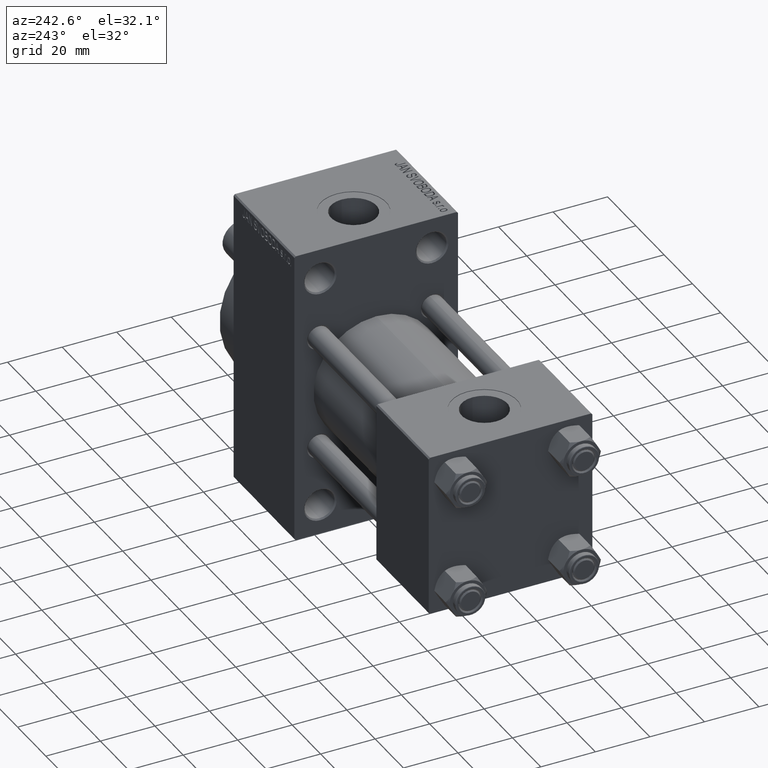
[diagram: clean part render]
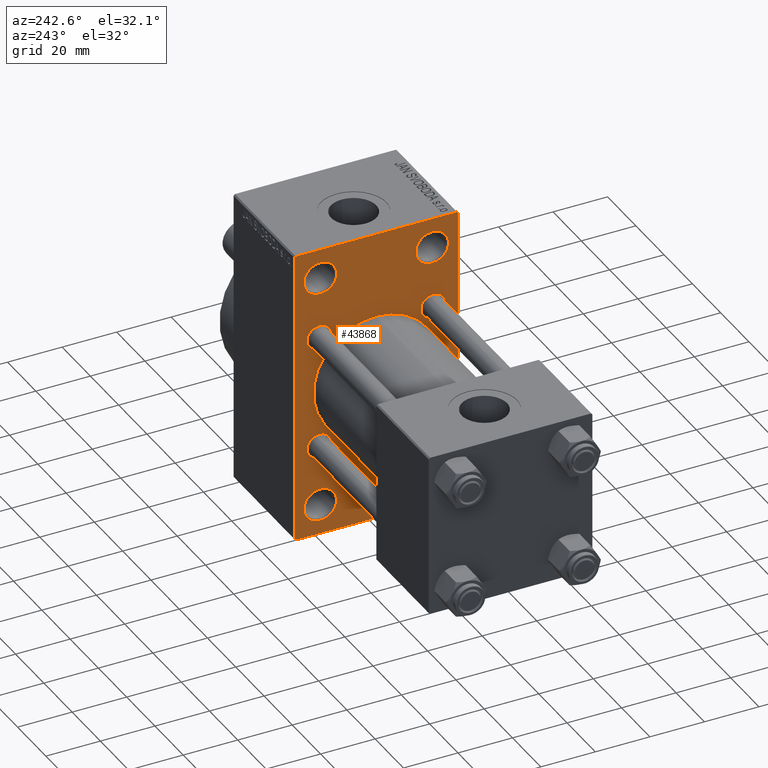
[diagram: same view with one face highlighted and labeled with its STEP entity id]
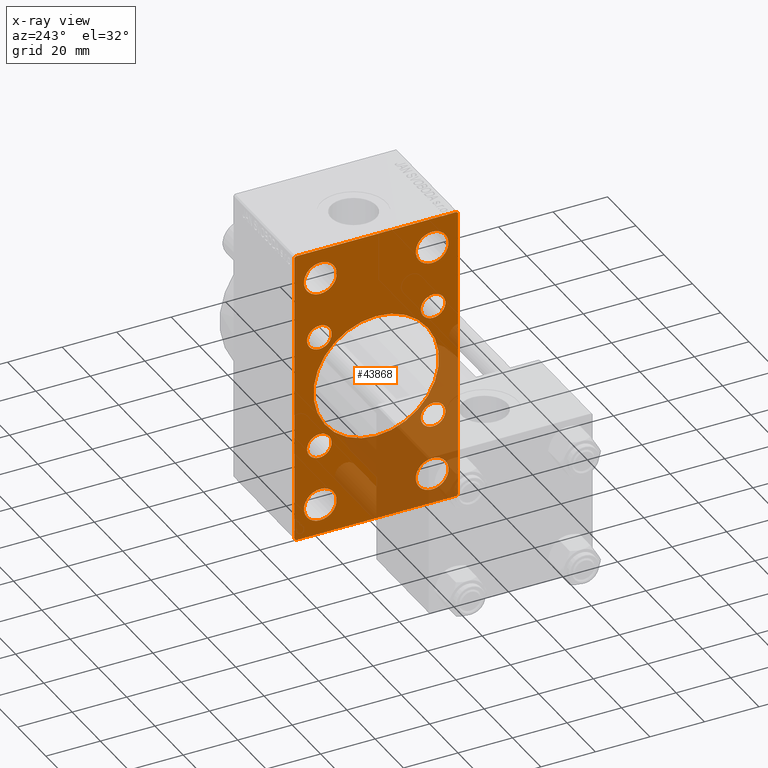
[diagram: x-ray of the same camera — body ghosted, the highlighted face saturated]
A machine part, auxiliary view. The second image highlights one B-rep face of the part: STEP entity #43868.
The next image is the same camera in x-ray: the body ghosted, the highlighted face saturated — about 33% of this face is hidden behind the body in this view.
In plain terms, the highlighted planar face has unit normal (-1, 0, 0).
Its self-contained STEP definition (entity closure, byte-faithful):
#103 = CIRCLE ( 'NONE', #17872, 4.500000000000007105 ) ;
#120 = CARTESIAN_POINT ( 'NONE',  ( 95.00000000000000000, -2.602085213965210642E-15, 23.00000000000000000 ) ) ;
#139 = AXIS2_PLACEMENT_3D ( 'NONE', #6416, #21160, #2768 ) ;
#184 = CARTESIAN_POINT ( 'NONE',  ( 95.00000000000000000, -20.50000000000000000, 37.50000000000009948 ) ) ;
#504 = CIRCLE ( 'NONE', #2815, 5.999999999999894307 ) ;
#742 = EDGE_LOOP ( 'NONE', ( #38687, #14866 ) ) ;
#1057 = EDGE_LOOP ( 'NONE', ( #47079, #43372, #40968, #3454, #30568, #5935, #10012, #42670 ) ) ;
#1540 = AXIS2_PLACEMENT_3D ( 'NONE', #15636, #37929, #12255 ) ;
#1602 = CIRCLE ( 'NONE', #24030, 5.999999999999894307 ) ;
#1646 = CARTESIAN_POINT ( 'NONE',  ( 95.00000000000000000, -29.49999999999997513, 54.50000000000000000 ) ) ;
#1828 = LINE ( 'NONE', #43219, #30032 ) ;
#2073 = DIRECTION ( 'NONE',  ( 1.000000000000000000, -0.000000000000000000, 0.000000000000000000 ) ) ;
#2411 = LINE ( 'NONE', #6526, #32993 ) ;
#2542 = EDGE_LOOP ( 'NONE', ( #32224, #19873 ) ) ;
#2768 = DIRECTION ( 'NONE',  ( 0.000000000000000000, 0.000000000000000000, 1.000000000000000000 ) ) ;
#2815 = AXIS2_PLACEMENT_3D ( 'NONE', #34805, #17554, #47142 ) ;
#2838 = DIRECTION ( 'NONE',  ( 0.000000000000000000, 0.7071067811865279218, -0.7071067811865671127 ) ) ;
#3185 = DIRECTION ( 'NONE',  ( 0.000000000000000000, 0.000000000000000000, -1.000000000000000000 ) ) ;
#3319 = VECTOR ( 'NONE', #2838, 1000.000000000000000 ) ;
#3454 = ORIENTED_EDGE ( 'NONE', *, *, #16496, .T. ) ;
#3600 = VERTEX_POINT ( 'NONE', #33963 ) ;
#3620 = LINE ( 'NONE', #21522, #36493 ) ;
#3917 = CARTESIAN_POINT ( 'NONE',  ( 95.00000000000000000, 29.99999999999999645, -53.99999999999999289 ) ) ;
#4335 = DIRECTION ( 'NONE',  ( -1.000000000000000000, 0.000000000000000000, -0.000000000000000000 ) ) ;
#4456 = AXIS2_PLACEMENT_3D ( 'NONE', #16023, #34679, #8551 ) ;
#4520 = VECTOR ( 'NONE', #31721, 1000.000000000000000 ) ;
#4663 = CIRCLE ( 'NONE', #20086, 5.999999999999894307 ) ;
#4765 = EDGE_LOOP ( 'NONE', ( #14617, #10496 ) ) ;
#4766 = EDGE_CURVE ( 'NONE', #33089, #46658, #21501, .T. ) ;
#5097 = VERTEX_POINT ( 'NONE', #21099 ) ;
#5305 = CARTESIAN_POINT ( 'NONE',  ( 95.00000000000000000, -20.84999999999999076, -20.85000000000000497 ) ) ;
#5537 = VECTOR ( 'NONE', #16749, 1000.000000000000000 ) ;
#5544 = VERTEX_POINT ( 'NONE', #7005 ) ;
#5603 = VERTEX_POINT ( 'NONE', #1646 ) ;
#5935 = ORIENTED_EDGE ( 'NONE', *, *, #46875, .T. ) ;
#6113 = CIRCLE ( 'NONE', #22339, 4.500000000000007105 ) ;
#6416 = CARTESIAN_POINT ( 'NONE',  ( 95.00000000000000000, -20.84999999999999076, -20.85000000000000497 ) ) ;
#6526 = CARTESIAN_POINT ( 'NONE',  ( 95.00000000000000000, 29.99999999999999645, 54.49999999999999289 ) ) ;
#7005 = CARTESIAN_POINT ( 'NONE',  ( 95.00000000000000000, -20.84999999999999076, 16.34999999999999787 ) ) ;
#7023 = CIRCLE ( 'NONE', #13955, 23.00000000000000000 ) ;
#7038 = EDGE_CURVE ( 'NONE', #45391, #22567, #46378, .T. ) ;
#7099 = EDGE_CURVE ( 'NONE', #3600, #33226, #28600, .T. ) ;
#7242 = ORIENTED_EDGE ( 'NONE', *, *, #12893, .T. ) ;
#7812 = ORIENTED_EDGE ( 'NONE', *, *, #44986, .T. ) ;
#8228 = CARTESIAN_POINT ( 'NONE',  ( 95.00000000000000000, -20.84999999999999076, 20.85000000000000497 ) ) ;
#8286 = EDGE_CURVE ( 'NONE', #31011, #41656, #39776, .T. ) ;
#8551 = DIRECTION ( 'NONE',  ( 0.000000000000000000, 0.000000000000000000, 1.000000000000000000 ) ) ;
#9158 = DIRECTION ( 'NONE',  ( 0.000000000000000000, 0.000000000000000000, 1.000000000000000000 ) ) ;
#9332 = DIRECTION ( 'NONE',  ( -0.000000000000000000, 0.000000000000000000, 1.000000000000000000 ) ) ;
#9390 = CARTESIAN_POINT ( 'NONE',  ( 95.00000000000000000, 20.84999999999999787, -25.35000000000000853 ) ) ;
#10012 = ORIENTED_EDGE ( 'NONE', *, *, #43140, .T. ) ;
#10422 = EDGE_LOOP ( 'NONE', ( #37368, #7242 ) ) ;
#10496 = ORIENTED_EDGE ( 'NONE', *, *, #18698, .T. ) ;
#11124 = DIRECTION ( 'NONE',  ( 1.000000000000000000, -0.000000000000000000, 0.000000000000000000 ) ) ;
#11148 = DIRECTION ( 'NONE',  ( 0.000000000000000000, 0.000000000000000000, 1.000000000000000000 ) ) ;
#11362 = CARTESIAN_POINT ( 'NONE',  ( 95.00000000000000000, 29.50000000000002132, 54.49999999999999289 ) ) ;
#11600 = FACE_BOUND ( 'NONE', #31286, .T. ) ;
#12255 = DIRECTION ( 'NONE',  ( 0.000000000000000000, 0.000000000000000000, -1.000000000000000000 ) ) ;
#12434 = CARTESIAN_POINT ( 'NONE',  ( 95.00000000000000000, 20.84999999999999787, 25.35000000000000853 ) ) ;
#12538 = DIRECTION ( 'NONE',  ( 1.000000000000000000, -0.000000000000000000, 0.000000000000000000 ) ) ;
#12727 = FACE_BOUND ( 'NONE', #14024, .T. ) ;
#12827 = CARTESIAN_POINT ( 'NONE',  ( 95.00000000000000000, 20.84999999999999787, 20.85000000000000142 ) ) ;
#12893 = EDGE_CURVE ( 'NONE', #23001, #5097, #504, .T. ) ;
#12955 = FACE_OUTER_BOUND ( 'NONE', #1057, .T. ) ;
#13161 = VERTEX_POINT ( 'NONE', #31596 ) ;
#13526 = EDGE_CURVE ( 'NONE', #47795, #5603, #2411, .T. ) ;
#13535 = EDGE_CURVE ( 'NONE', #45205, #35740, #15976, .T. ) ;
#13732 = LINE ( 'NONE', #43768, #3319 ) ;
#13955 = AXIS2_PLACEMENT_3D ( 'NONE', #21098, #17924, #3185 ) ;
#14021 = DIRECTION ( 'NONE',  ( 0.000000000000000000, -1.000000000000000000, -1.156482317317871478E-16 ) ) ;
#14024 = EDGE_LOOP ( 'NONE', ( #33918, #37259 ) ) ;
#14454 = EDGE_CURVE ( 'NONE', #36339, #30585, #27647, .T. ) ;
#14617 = ORIENTED_EDGE ( 'NONE', *, *, #21770, .T. ) ;
#14866 = ORIENTED_EDGE ( 'NONE', *, *, #16121, .T. ) ;
#15574 = CIRCLE ( 'NONE', #34950, 4.500000000000007105 ) ;
#15636 = CARTESIAN_POINT ( 'NONE',  ( 95.00000000000000000, -2.602085213965210642E-15, 0.000000000000000000 ) ) ;
#15895 = CARTESIAN_POINT ( 'NONE',  ( 95.00000000000000000, 20.50000000000000000, -43.50000000000000000 ) ) ;
#15903 = ORIENTED_EDGE ( 'NONE', *, *, #7099, .T. ) ;
#15976 = CIRCLE ( 'NONE', #43820, 4.500000000000007105 ) ;
#16023 = CARTESIAN_POINT ( 'NONE',  ( 95.00000000000000000, -20.50000000000000000, 43.50000000000000000 ) ) ;
#16121 = EDGE_CURVE ( 'NONE', #39949, #26366, #38485, .T. ) ;
#16154 = AXIS2_PLACEMENT_3D ( 'NONE', #31093, #42465, #26975 ) ;
#16489 = EDGE_CURVE ( 'NONE', #20918, #13161, #22266, .T. ) ;
#16496 = EDGE_CURVE ( 'NONE', #33089, #5603, #1828, .T. ) ;
#16749 = DIRECTION ( 'NONE',  ( 0.000000000000000000, 0.000000000000000000, -1.000000000000000000 ) ) ;
#16801 = EDGE_CURVE ( 'NONE', #19007, #46658, #46966, .T. ) ;
#17554 = DIRECTION ( 'NONE',  ( 1.000000000000000000, -0.000000000000000000, 0.000000000000000000 ) ) ;
#17872 = AXIS2_PLACEMENT_3D ( 'NONE', #31606, #37733, #41150 ) ;
#17924 = DIRECTION ( 'NONE',  ( 1.000000000000000000, 0.000000000000000000, 0.000000000000000000 ) ) ;
#18698 = EDGE_CURVE ( 'NONE', #5544, #36433, #6113, .T. ) ;
#19007 = VERTEX_POINT ( 'NONE', #28294 ) ;
#19573 = DIRECTION ( 'NONE',  ( 1.000000000000000000, -0.000000000000000000, 0.000000000000000000 ) ) ;
#19873 = ORIENTED_EDGE ( 'NONE', *, *, #7038, .T. ) ;
#19968 = AXIS2_PLACEMENT_3D ( 'NONE', #38917, #27066, #41844 ) ;
#20086 = AXIS2_PLACEMENT_3D ( 'NONE', #26386, #19573, #41166 ) ;
#20626 = LINE ( 'NONE', #21339, #5537 ) ;
#20712 = CARTESIAN_POINT ( 'NONE',  ( 95.00000000000000000, 20.50000000000000000, 37.50000000000009948 ) ) ;
#20864 = EDGE_CURVE ( 'NONE', #13161, #20918, #24621, .T. ) ;
#20918 = VERTEX_POINT ( 'NONE', #20712 ) ;
#21098 = CARTESIAN_POINT ( 'NONE',  ( 95.00000000000000000, -2.602085213965210642E-15, 0.000000000000000000 ) ) ;
#21099 = CARTESIAN_POINT ( 'NONE',  ( 95.00000000000000000, -20.50000000000000000, -37.50000000000009948 ) ) ;
#21160 = DIRECTION ( 'NONE',  ( 1.000000000000000000, -0.000000000000000000, 0.000000000000000000 ) ) ;
#21339 = CARTESIAN_POINT ( 'NONE',  ( 95.00000000000000000, 29.99999999999999645, 54.49999999999999289 ) ) ;
#21501 = LINE ( 'NONE', #24906, #24649 ) ;
#21522 = CARTESIAN_POINT ( 'NONE',  ( 95.00000000000000000, 29.99999999999999645, -54.49999999999999289 ) ) ;
#21594 = CIRCLE ( 'NONE', #16154, 5.999999999999894307 ) ;
#21770 = EDGE_CURVE ( 'NONE', #36433, #5544, #40886, .T. ) ;
#21771 = DIRECTION ( 'NONE',  ( 0.000000000000000000, 0.000000000000000000, 1.000000000000000000 ) ) ;
#22037 = VERTEX_POINT ( 'NONE', #38803 ) ;
#22266 = CIRCLE ( 'NONE', #33899, 5.999999999999894307 ) ;
#22339 = AXIS2_PLACEMENT_3D ( 'NONE', #8228, #37755, #43418 ) ;
#22567 = VERTEX_POINT ( 'NONE', #120 ) ;
#22954 = FACE_BOUND ( 'NONE', #2542, .T. ) ;
#23001 = VERTEX_POINT ( 'NONE', #47871 ) ;
#23407 = DIRECTION ( 'NONE',  ( 1.000000000000000000, -0.000000000000000000, 0.000000000000000000 ) ) ;
#23666 = CARTESIAN_POINT ( 'NONE',  ( 95.00000000000000000, 20.50000000000000000, -43.50000000000000000 ) ) ;
#24030 = AXIS2_PLACEMENT_3D ( 'NONE', #15895, #23407, #30689 ) ;
#24565 = DIRECTION ( 'NONE',  ( 0.000000000000000000, 0.000000000000000000, 1.000000000000000000 ) ) ;
#24621 = CIRCLE ( 'NONE', #36233, 5.999999999999894307 ) ;
#24649 = VECTOR ( 'NONE', #25869, 1000.000000000000000 ) ;
#24772 = CARTESIAN_POINT ( 'NONE',  ( 95.00000000000000000, 20.50000000000000000, -49.49999999999989342 ) ) ;
#24801 = EDGE_CURVE ( 'NONE', #5097, #23001, #4663, .T. ) ;
#24906 = CARTESIAN_POINT ( 'NONE',  ( 95.00000000000000000, -30.00000000000000000, 54.50000000000000000 ) ) ;
#24917 = DIRECTION ( 'NONE',  ( 0.000000000000000000, -1.000000000000000000, 1.156482317317871478E-16 ) ) ;
#25869 = DIRECTION ( 'NONE',  ( 0.000000000000000000, 0.000000000000000000, -1.000000000000000000 ) ) ;
#26157 = CARTESIAN_POINT ( 'NONE',  ( 95.00000000000000000, 20.50000000000000000, 43.50000000000000000 ) ) ;
#26366 = VERTEX_POINT ( 'NONE', #47240 ) ;
#26386 = CARTESIAN_POINT ( 'NONE',  ( 95.00000000000000000, -20.50000000000000000, -43.50000000000000000 ) ) ;
#26572 = ORIENTED_EDGE ( 'NONE', *, *, #43881, .T. ) ;
#26654 = AXIS2_PLACEMENT_3D ( 'NONE', #5305, #32092, #9158 ) ;
#26790 = EDGE_CURVE ( 'NONE', #26366, #39949, #1602, .T. ) ;
#26854 = CARTESIAN_POINT ( 'NONE',  ( 95.00000000000000000, -30.00000000000000000, -53.99999999999998579 ) ) ;
#26975 = DIRECTION ( 'NONE',  ( 0.000000000000000000, 0.000000000000000000, 1.000000000000000000 ) ) ;
#27066 = DIRECTION ( 'NONE',  ( 1.000000000000000000, -0.000000000000000000, 0.000000000000000000 ) ) ;
#27611 = DIRECTION ( 'NONE',  ( 0.000000000000000000, 0.000000000000000000, 1.000000000000000000 ) ) ;
#27647 = CIRCLE ( 'NONE', #4456, 5.999999999999894307 ) ;
#27739 = PLANE ( 'NONE',  #38786 ) ;
#28294 = CARTESIAN_POINT ( 'NONE',  ( 95.00000000000000000, -29.50000000000000355, -54.50000000000000000 ) ) ;
#28560 = EDGE_CURVE ( 'NONE', #32649, #22037, #36491, .T. ) ;
#28600 = CIRCLE ( 'NONE', #35540, 4.500000000000007105 ) ;
#29938 = EDGE_LOOP ( 'NONE', ( #30933, #46956 ) ) ;
#30032 = VECTOR ( 'NONE', #39344, 1000.000000000000114 ) ;
#30228 = CARTESIAN_POINT ( 'NONE',  ( 95.00000000000000000, -20.50000000000000000, 49.49999999999989342 ) ) ;
#30568 = ORIENTED_EDGE ( 'NONE', *, *, #13526, .F. ) ;
#30585 = VERTEX_POINT ( 'NONE', #184 ) ;
#30689 = DIRECTION ( 'NONE',  ( 0.000000000000000000, 0.000000000000000000, 1.000000000000000000 ) ) ;
#30933 = ORIENTED_EDGE ( 'NONE', *, *, #20864, .T. ) ;
#31011 = VERTEX_POINT ( 'NONE', #38258 ) ;
#31093 = CARTESIAN_POINT ( 'NONE',  ( 95.00000000000000000, -20.50000000000000000, 43.50000000000000000 ) ) ;
#31286 = EDGE_LOOP ( 'NONE', ( #33729, #7812 ) ) ;
#31596 = CARTESIAN_POINT ( 'NONE',  ( 95.00000000000000000, 20.50000000000000000, 49.49999999999989342 ) ) ;
#31606 = CARTESIAN_POINT ( 'NONE',  ( 95.00000000000000000, 20.84999999999999787, -20.85000000000000142 ) ) ;
#31721 = DIRECTION ( 'NONE',  ( 0.000000000000000000, -0.7071067811865352493, 0.7071067811865597852 ) ) ;
#32092 = DIRECTION ( 'NONE',  ( 1.000000000000000000, -0.000000000000000000, 0.000000000000000000 ) ) ;
#32190 = CARTESIAN_POINT ( 'NONE',  ( 95.00000000000000000, -42.00000000000051159, -41.99999999999905498 ) ) ;
#32224 = ORIENTED_EDGE ( 'NONE', *, *, #38148, .T. ) ;
#32649 = VERTEX_POINT ( 'NONE', #3917 ) ;
#32864 = CARTESIAN_POINT ( 'NONE',  ( 95.00000000000000000, 41.99999999999998579, -41.99999999999998579 ) ) ;
#32993 = VECTOR ( 'NONE', #24917, 1000.000000000000000 ) ;
#33089 = VERTEX_POINT ( 'NONE', #44784 ) ;
#33226 = VERTEX_POINT ( 'NONE', #9390 ) ;
#33400 = CIRCLE ( 'NONE', #139, 4.500000000000007105 ) ;
#33638 = FACE_BOUND ( 'NONE', #742, .T. ) ;
#33729 = ORIENTED_EDGE ( 'NONE', *, *, #8286, .T. ) ;
#33860 = DIRECTION ( 'NONE',  ( 0.000000000000000000, 0.000000000000000000, 1.000000000000000000 ) ) ;
#33899 = AXIS2_PLACEMENT_3D ( 'NONE', #35234, #42271, #24565 ) ;
#33918 = ORIENTED_EDGE ( 'NONE', *, *, #14454, .T. ) ;
#33963 = CARTESIAN_POINT ( 'NONE',  ( 95.00000000000000000, 20.84999999999999787, -16.34999999999999432 ) ) ;
#34117 = FACE_BOUND ( 'NONE', #47511, .T. ) ;
#34679 = DIRECTION ( 'NONE',  ( 1.000000000000000000, -0.000000000000000000, 0.000000000000000000 ) ) ;
#34805 = CARTESIAN_POINT ( 'NONE',  ( 95.00000000000000000, -20.50000000000000000, -43.50000000000000000 ) ) ;
#34934 = VECTOR ( 'NONE', #36736, 1000.000000000000114 ) ;
#34950 = AXIS2_PLACEMENT_3D ( 'NONE', #40191, #11124, #21771 ) ;
#35007 = FACE_BOUND ( 'NONE', #10422, .T. ) ;
#35234 = CARTESIAN_POINT ( 'NONE',  ( 95.00000000000000000, 20.50000000000000000, 43.50000000000000000 ) ) ;
#35449 = EDGE_CURVE ( 'NONE', #30585, #36339, #21594, .T. ) ;
#35540 = AXIS2_PLACEMENT_3D ( 'NONE', #39358, #2073, #46862 ) ;
#35740 = VERTEX_POINT ( 'NONE', #38291 ) ;
#36233 = AXIS2_PLACEMENT_3D ( 'NONE', #26157, #44339, #11148 ) ;
#36298 = CARTESIAN_POINT ( 'NONE',  ( 95.00000000000000000, 29.99999999999999645, 53.99999999999999289 ) ) ;
#36339 = VERTEX_POINT ( 'NONE', #30228 ) ;
#36433 = VERTEX_POINT ( 'NONE', #40878 ) ;
#36491 = LINE ( 'NONE', #32864, #34934 ) ;
#36493 = VECTOR ( 'NONE', #14021, 1000.000000000000000 ) ;
#36616 = EDGE_LOOP ( 'NONE', ( #43494, #36944 ) ) ;
#36736 = DIRECTION ( 'NONE',  ( -0.000000000000000000, -0.7071067811865474617, -0.7071067811865474617 ) ) ;
#36944 = ORIENTED_EDGE ( 'NONE', *, *, #44599, .T. ) ;
#37259 = ORIENTED_EDGE ( 'NONE', *, *, #35449, .T. ) ;
#37368 = ORIENTED_EDGE ( 'NONE', *, *, #24801, .T. ) ;
#37733 = DIRECTION ( 'NONE',  ( 1.000000000000000000, -0.000000000000000000, 0.000000000000000000 ) ) ;
#37755 = DIRECTION ( 'NONE',  ( 1.000000000000000000, -0.000000000000000000, 0.000000000000000000 ) ) ;
#37929 = DIRECTION ( 'NONE',  ( 1.000000000000000000, 0.000000000000000000, 0.000000000000000000 ) ) ;
#38148 = EDGE_CURVE ( 'NONE', #22567, #45391, #7023, .T. ) ;
#38258 = CARTESIAN_POINT ( 'NONE',  ( 95.00000000000000000, -20.84999999999999076, -16.34999999999999787 ) ) ;
#38291 = CARTESIAN_POINT ( 'NONE',  ( 95.00000000000000000, 20.84999999999999787, 16.34999999999999432 ) ) ;
#38485 = CIRCLE ( 'NONE', #47765, 5.999999999999894307 ) ;
#38632 = FACE_BOUND ( 'NONE', #4765, .T. ) ;
#38687 = ORIENTED_EDGE ( 'NONE', *, *, #26790, .T. ) ;
#38786 = AXIS2_PLACEMENT_3D ( 'NONE', #42515, #4335, #9332 ) ;
#38803 = CARTESIAN_POINT ( 'NONE',  ( 95.00000000000000000, 29.49999999999999645, -54.49999999999999289 ) ) ;
#38917 = CARTESIAN_POINT ( 'NONE',  ( 95.00000000000000000, -20.84999999999999076, 20.85000000000000497 ) ) ;
#39344 = DIRECTION ( 'NONE',  ( -0.000000000000000000, 0.7071067811865451302, 0.7071067811865500152 ) ) ;
#39358 = CARTESIAN_POINT ( 'NONE',  ( 95.00000000000000000, 20.84999999999999787, -20.85000000000000142 ) ) ;
#39776 = CIRCLE ( 'NONE', #26654, 4.500000000000007105 ) ;
#39949 = VERTEX_POINT ( 'NONE', #24772 ) ;
#40191 = CARTESIAN_POINT ( 'NONE',  ( 95.00000000000000000, 20.84999999999999787, 20.85000000000000142 ) ) ;
#40878 = CARTESIAN_POINT ( 'NONE',  ( 95.00000000000000000, -20.84999999999999076, 25.35000000000001208 ) ) ;
#40886 = CIRCLE ( 'NONE', #19968, 4.500000000000007105 ) ;
#40968 = ORIENTED_EDGE ( 'NONE', *, *, #4766, .F. ) ;
#41150 = DIRECTION ( 'NONE',  ( 0.000000000000000000, 0.000000000000000000, 1.000000000000000000 ) ) ;
#41166 = DIRECTION ( 'NONE',  ( 0.000000000000000000, 0.000000000000000000, 1.000000000000000000 ) ) ;
#41390 = FACE_BOUND ( 'NONE', #36616, .T. ) ;
#41656 = VERTEX_POINT ( 'NONE', #43688 ) ;
#41844 = DIRECTION ( 'NONE',  ( 0.000000000000000000, 0.000000000000000000, 1.000000000000000000 ) ) ;
#42271 = DIRECTION ( 'NONE',  ( 1.000000000000000000, -0.000000000000000000, 0.000000000000000000 ) ) ;
#42465 = DIRECTION ( 'NONE',  ( 1.000000000000000000, -0.000000000000000000, 0.000000000000000000 ) ) ;
#42515 = CARTESIAN_POINT ( 'NONE',  ( 95.00000000000000000, 0.000000000000000000, 0.000000000000000000 ) ) ;
#42670 = ORIENTED_EDGE ( 'NONE', *, *, #28560, .T. ) ;
#43092 = DIRECTION ( 'NONE',  ( 1.000000000000000000, -0.000000000000000000, 0.000000000000000000 ) ) ;
#43140 = EDGE_CURVE ( 'NONE', #43707, #32649, #20626, .T. ) ;
#43219 = CARTESIAN_POINT ( 'NONE',  ( 95.00000000000000000, -42.00000000000008527, 41.99999999999979394 ) ) ;
#43372 = ORIENTED_EDGE ( 'NONE', *, *, #16801, .T. ) ;
#43418 = DIRECTION ( 'NONE',  ( 0.000000000000000000, 0.000000000000000000, 1.000000000000000000 ) ) ;
#43494 = ORIENTED_EDGE ( 'NONE', *, *, #13535, .T. ) ;
#43688 = CARTESIAN_POINT ( 'NONE',  ( 95.00000000000000000, -20.84999999999999076, -25.35000000000001208 ) ) ;
#43707 = VERTEX_POINT ( 'NONE', #36298 ) ;
#43768 = CARTESIAN_POINT ( 'NONE',  ( 95.00000000000000000, 42.00000000000082423, 41.99999999999849365 ) ) ;
#43820 = AXIS2_PLACEMENT_3D ( 'NONE', #12827, #43092, #27611 ) ;
#43868 = ADVANCED_FACE ( 'NONE', ( #12727, #35007, #33638, #44783, #38632, #41390, #34117, #11600, #22954, #12955 ), #27739, .T. ) ;
#43881 = EDGE_CURVE ( 'NONE', #33226, #3600, #103, .T. ) ;
#44339 = DIRECTION ( 'NONE',  ( 1.000000000000000000, -0.000000000000000000, 0.000000000000000000 ) ) ;
#44370 = CARTESIAN_POINT ( 'NONE',  ( 95.00000000000000000, 2.146024240737012665E-16, -23.00000000000000000 ) ) ;
#44599 = EDGE_CURVE ( 'NONE', #35740, #45205, #15574, .T. ) ;
#44608 = EDGE_CURVE ( 'NONE', #22037, #19007, #3620, .T. ) ;
#44783 = FACE_BOUND ( 'NONE', #29938, .T. ) ;
#44784 = CARTESIAN_POINT ( 'NONE',  ( 95.00000000000000000, -30.00000000000000000, 53.99999999999997158 ) ) ;
#44986 = EDGE_CURVE ( 'NONE', #41656, #31011, #33400, .T. ) ;
#45205 = VERTEX_POINT ( 'NONE', #12434 ) ;
#45391 = VERTEX_POINT ( 'NONE', #44370 ) ;
#46378 = CIRCLE ( 'NONE', #1540, 23.00000000000000000 ) ;
#46658 = VERTEX_POINT ( 'NONE', #26854 ) ;
#46862 = DIRECTION ( 'NONE',  ( 0.000000000000000000, 0.000000000000000000, 1.000000000000000000 ) ) ;
#46875 = EDGE_CURVE ( 'NONE', #47795, #43707, #13732, .T. ) ;
#46956 = ORIENTED_EDGE ( 'NONE', *, *, #16489, .T. ) ;
#46966 = LINE ( 'NONE', #32190, #4520 ) ;
#47079 = ORIENTED_EDGE ( 'NONE', *, *, #44608, .T. ) ;
#47142 = DIRECTION ( 'NONE',  ( 0.000000000000000000, 0.000000000000000000, 1.000000000000000000 ) ) ;
#47240 = CARTESIAN_POINT ( 'NONE',  ( 95.00000000000000000, 20.50000000000000000, -37.50000000000009948 ) ) ;
#47511 = EDGE_LOOP ( 'NONE', ( #15903, #26572 ) ) ;
#47765 = AXIS2_PLACEMENT_3D ( 'NONE', #23666, #12538, #33860 ) ;
#47795 = VERTEX_POINT ( 'NONE', #11362 ) ;
#47871 = CARTESIAN_POINT ( 'NONE',  ( 95.00000000000000000, -20.50000000000000000, -49.49999999999989342 ) ) ;